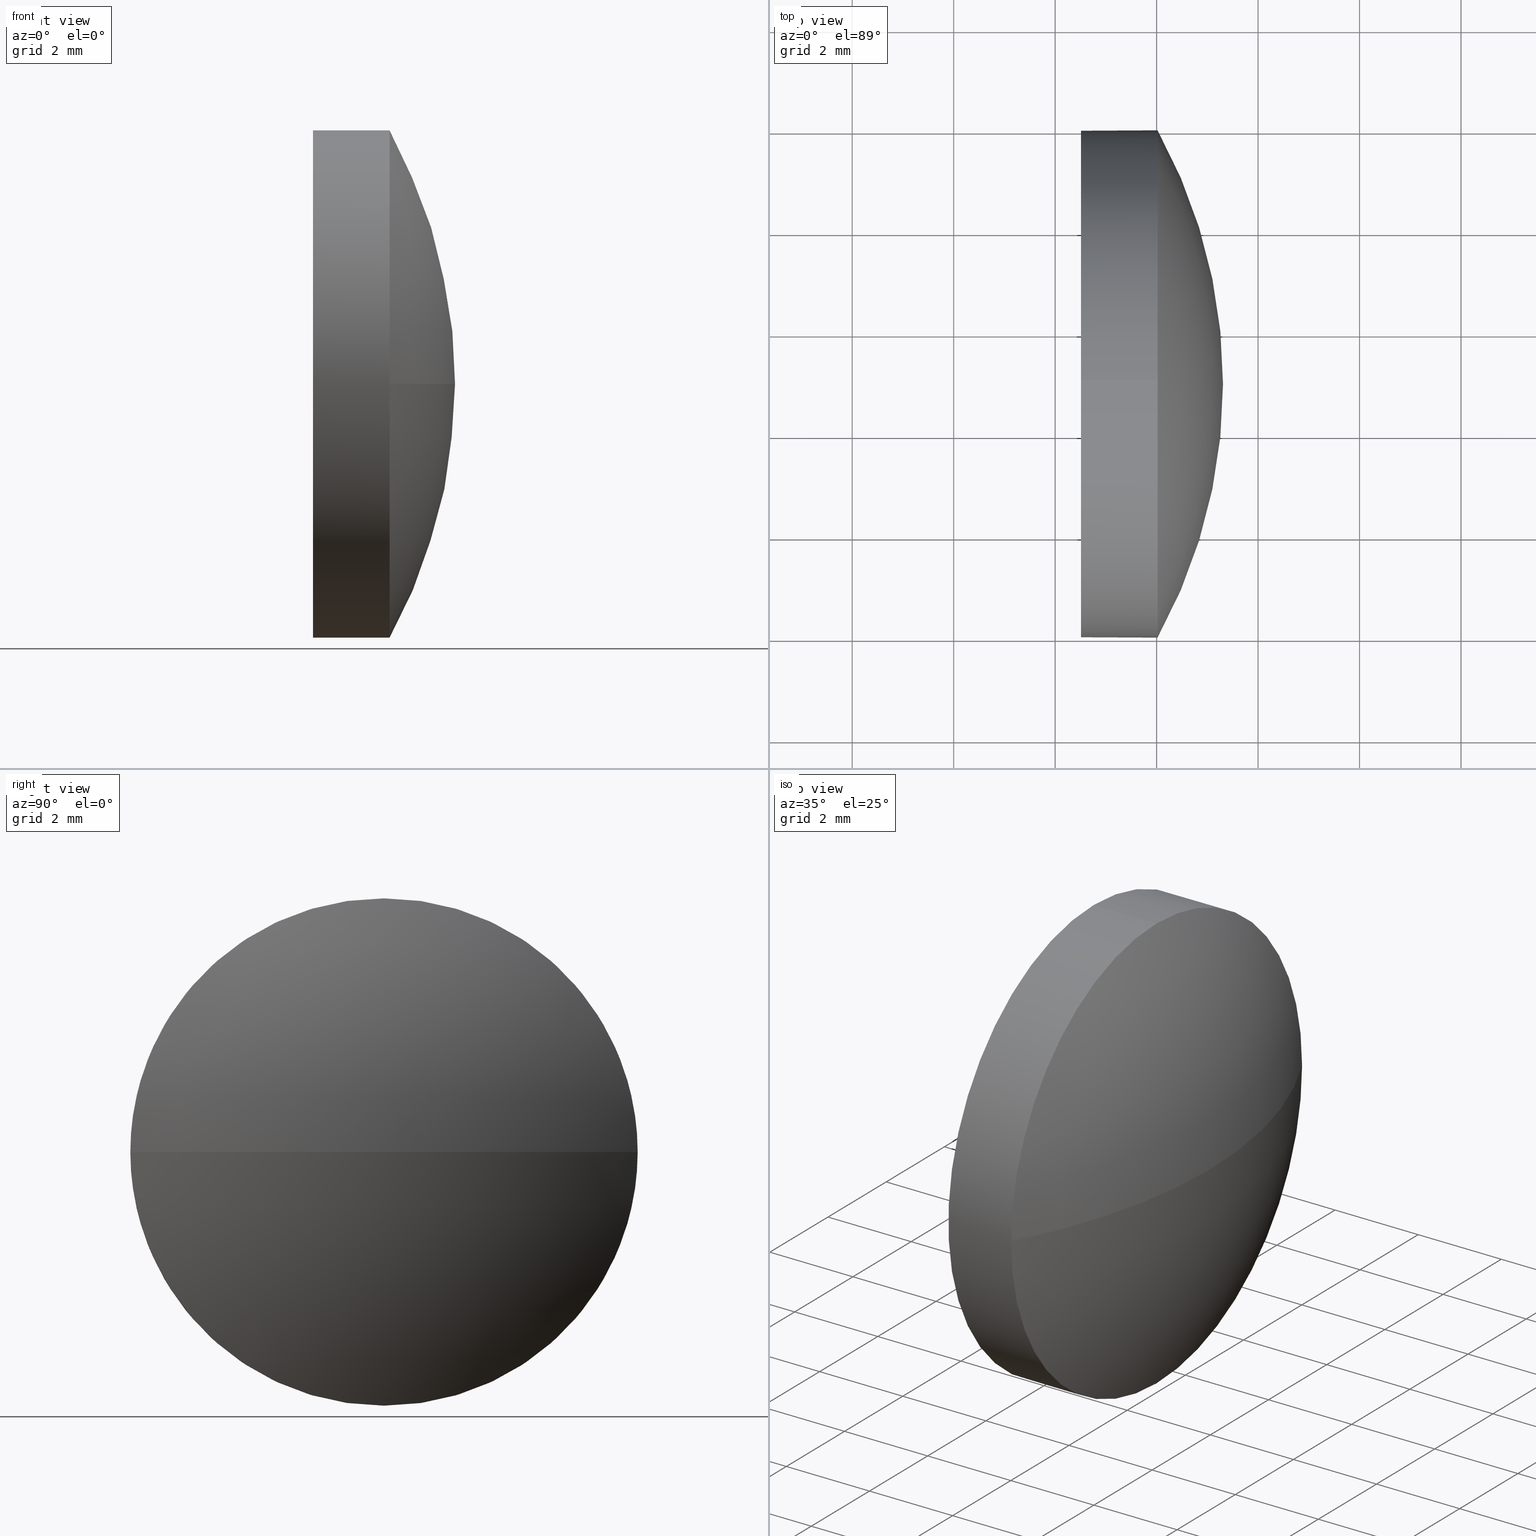
[diagram: canonical four-view strip — front | top / right | iso, engineering-drawing reading convention]
A machine part, canonical four-view strip (front | top / right | iso — engineering-drawing reading convention). The complete STEP part file that produces these views, byte-faithful:
ISO-10303-21;
HEADER;
FILE_DESCRIPTION (( 'STEP AP214' ),
    '1' );
FILE_NAME ('100016.STEP',
    '2019-04-19T07:48:52',
    ( '' ),
    ( '' ),
    'SwSTEP 2.0',
    'SolidWorks 2016',
    '' );
FILE_SCHEMA (( 'AUTOMOTIVE_DESIGN' ));
ENDSEC;

DATA;
#1 = SHAPE_DEFINITION_REPRESENTATION ( #39, #173 ) ;
#2 = COLOUR_RGB ( '',1.000000000000000000, 1.000000000000000000, 1.000000000000000000 ) ;
#3 = ORIENTED_EDGE ( 'NONE', *, *, #144, .T. ) ;
#4 = DIRECTION ( 'NONE',  ( -0.0000000000000000000, 0.0000000000000000000, 1.000000000000000000 ) ) ;
#5 = DIRECTION ( 'NONE',  ( 0.0000000000000000000, 0.0000000000000000000, 1.000000000000000000 ) ) ;
#6 = CARTESIAN_POINT ( 'NONE',  ( 579.2775846960382800, 182.9834042929953700, -5.000000000000004400 ) ) ;
#7 = AXIS2_PLACEMENT_3D ( 'NONE', #145, #168, #167 ) ;
#8 = DIRECTION ( 'NONE',  ( -1.000000000000000000, -0.0000000000000000000, -0.0000000000000000000 ) ) ;
#9 = ORIENTED_EDGE ( 'NONE', *, *, #137, .F. ) ;
#10 = AXIS2_PLACEMENT_3D ( 'NONE', #157, #102, #18 ) ;
#11 = ORIENTED_EDGE ( 'NONE', *, *, #172, .F. ) ;
#12 = DIRECTION ( 'NONE',  ( 0.0000000000000000000, 0.0000000000000000000, -1.000000000000000000 ) ) ;
#13 = CARTESIAN_POINT ( 'NONE',  ( 582.0191052701056800, 187.9834042929954000, 0.0000000000000000000 ) ) ;
#14 =( NAMED_UNIT ( * ) PLANE_ANGLE_UNIT ( ) SI_UNIT ( $, .RADIAN. ) );
#15 =( NAMED_UNIT ( * ) PLANE_ANGLE_UNIT ( ) SI_UNIT ( $, .RADIAN. ) );
#16 = EDGE_CURVE ( 'NONE', #52, #73, #164, .T. ) ;
#17 =( NAMED_UNIT ( * ) SI_UNIT ( $, .STERADIAN. ) SOLID_ANGLE_UNIT ( ) );
#18 = DIRECTION ( 'NONE',  ( 0.0000000000000000000, 0.0000000000000000000, 1.000000000000000000 ) ) ;
#19 = ADVANCED_FACE ( 'NONE', ( #125 ), #150, .T. ) ;
#20 = AXIS2_PLACEMENT_3D ( 'NONE', #176, #21, #67 ) ;
#21 = DIRECTION ( 'NONE',  ( -1.000000000000000000, -0.0000000000000000000, -0.0000000000000000000 ) ) ;
#22 = CARTESIAN_POINT ( 'NONE',  ( 582.0191052701056800, 182.9834042929953700, 5.000000000000004400 ) ) ;
#23 = DIRECTION ( 'NONE',  ( -1.000000000000000000, -0.0000000000000000000, -0.0000000000000000000 ) ) ;
#24 = CARTESIAN_POINT ( 'NONE',  ( 582.0191052701056800, 182.9834042929953700, 0.0000000000000000000 ) ) ;
#25 = UNCERTAINTY_MEASURE_WITH_UNIT (LENGTH_MEASURE( 1.000000000000000100E-005 ), #48, 'distance_accuracy_value', 'NONE');
#26 = ORIENTED_EDGE ( 'NONE', *, *, #16, .T. ) ;
#27 = AXIS2_PLACEMENT_3D ( 'NONE', #61, #76, #64 ) ;
#28 = CIRCLE ( 'NONE', #132, 5.000000000000004400 ) ;
#29 = STYLED_ITEM ( 'NONE', ( #43 ), #173 ) ;
#30 = CARTESIAN_POINT ( 'NONE',  ( 580.5091052701055800, 182.9834042929953700, 0.0000000000000000000 ) ) ;
#31 = VERTEX_POINT ( 'NONE', #186 ) ;
#32 = PRODUCT_CONTEXT ( 'NONE', #156, 'mechanical' ) ;
#33 =( NAMED_UNIT ( * ) PLANE_ANGLE_UNIT ( ) SI_UNIT ( $, .RADIAN. ) );
#34 = CYLINDRICAL_SURFACE ( 'NONE', #10, 5.000000000000004400 ) ;
#35 = ADVANCED_FACE ( 'NONE', ( #179 ), #34, .T. ) ;
#36 = EDGE_LOOP ( 'NONE', ( #142, #113, #11, #9, #55 ) ) ;
#37 = STYLED_ITEM ( 'NONE', ( #84 ), #122 ) ;
#38 = PLANE ( 'NONE',  #155 ) ;
#39 = PRODUCT_DEFINITION_SHAPE ( 'NONE', 'NONE',  #158 ) ;
#40 = SURFACE_STYLE_FILL_AREA ( #74 ) ;
#41 = DIRECTION ( 'NONE',  ( 0.0000000000000000000, 0.0000000000000000000, 1.000000000000000000 ) ) ;
#42 = AXIS2_PLACEMENT_3D ( 'NONE', #63, #160, #131 ) ;
#43 = PRESENTATION_STYLE_ASSIGNMENT (( #89 ) ) ;
#44 = CYLINDRICAL_SURFACE ( 'NONE', #20, 5.000000000000004400 ) ;
#45 = ORIENTED_EDGE ( 'NONE', *, *, #151, .F. ) ;
#46 =( LENGTH_UNIT ( ) NAMED_UNIT ( * ) SI_UNIT ( .MILLI., .METRE. ) );
#47 = UNCERTAINTY_MEASURE_WITH_UNIT (LENGTH_MEASURE( 1.000000000000000100E-005 ), #46, 'distance_accuracy_value', 'NONE');
#48 =( LENGTH_UNIT ( ) NAMED_UNIT ( * ) SI_UNIT ( .MILLI., .METRE. ) );
#49 = AXIS2_PLACEMENT_3D ( 'NONE', #54, #82, #41 ) ;
#50 = EDGE_LOOP ( 'NONE', ( #154, #3 ) ) ;
#51 = AXIS2_PLACEMENT_3D ( 'NONE', #91, #175, #161 ) ;
#52 = VERTEX_POINT ( 'NONE', #129 ) ;
#53 = CARTESIAN_POINT ( 'NONE',  ( 580.5091052701055800, 182.9834042929953700, 0.0000000000000000000 ) ) ;
#54 = CARTESIAN_POINT ( 'NONE',  ( 582.0191052701056800, 182.9834042929953700, 0.0000000000000000000 ) ) ;
#55 = ORIENTED_EDGE ( 'NONE', *, *, #151, .T. ) ;
#56 =( GEOMETRIC_REPRESENTATION_CONTEXT ( 3 ) GLOBAL_UNCERTAINTY_ASSIGNED_CONTEXT ( ( #143 ) ) GLOBAL_UNIT_ASSIGNED_CONTEXT ( ( #185, #33, #17 ) ) REPRESENTATION_CONTEXT ( 'NONE', 'WORKASPACE' ) );
#57 = ORIENTED_EDGE ( 'NONE', *, *, #144, .F. ) ;
#58 = EDGE_CURVE ( 'NONE', #31, #133, #183, .T. ) ;
#59 =( NAMED_UNIT ( * ) SI_UNIT ( $, .STERADIAN. ) SOLID_ANGLE_UNIT ( ) );
#60 = ORIENTED_EDGE ( 'NONE', *, *, #184, .F. ) ;
#61 = CARTESIAN_POINT ( 'NONE',  ( 572.9741827894854400, 182.9834042929954300, 0.0000000000000000000 ) ) ;
#62 = ADVANCED_FACE ( 'NONE', ( #110 ), #140, .T. ) ;
#63 = CARTESIAN_POINT ( 'NONE',  ( 572.9741827894854400, 182.9834042929954300, 0.0000000000000000000 ) ) ;
#64 = DIRECTION ( 'NONE',  ( 0.0000000000000000000, 1.000000000000000000, 0.0000000000000000000 ) ) ;
#65 = ORIENTED_EDGE ( 'NONE', *, *, #115, .F. ) ;
#66 = LINE ( 'NONE', #114, #106 ) ;
#67 = DIRECTION ( 'NONE',  ( 0.0000000000000000000, 0.0000000000000000000, 1.000000000000000000 ) ) ;
#68 = CARTESIAN_POINT ( 'NONE',  ( 572.9741827894854400, 182.9834042929954300, 0.0000000000000000000 ) ) ;
#69 = AXIS2_PLACEMENT_3D ( 'NONE', #30, #121, #134 ) ;
#70 = ORIENTED_EDGE ( 'NONE', *, *, #58, .F. ) ;
#71 = SURFACE_SIDE_STYLE ('',( #118 ) ) ;
#72 = FILL_AREA_STYLE_COLOUR ( '', #2 ) ;
#73 = VERTEX_POINT ( 'NONE', #22 ) ;
#74 = FILL_AREA_STYLE ('',( #128 ) ) ;
#75 = CIRCLE ( 'NONE', #49, 5.000000000000004400 ) ;
#76 = DIRECTION ( 'NONE',  ( -0.0000000000000000000, 0.0000000000000000000, -1.000000000000000000 ) ) ;
#77 = FACE_OUTER_BOUND ( 'NONE', #50, .T. ) ;
#78 = EDGE_CURVE ( 'NONE', #133, #99, #149, .T. ) ;
#79 = CARTESIAN_POINT ( 'NONE',  ( 572.9741827894854400, 182.9834042929954300, 0.0000000000000000000 ) ) ;
#80 = DIRECTION ( 'NONE',  ( -1.000000000000000000, -0.0000000000000000000, -0.0000000000000000000 ) ) ;
#81 = COLOUR_RGB ( '',1.000000000000000000, 1.000000000000000000, 1.000000000000000000 ) ;
#82 = DIRECTION ( 'NONE',  ( -1.000000000000000000, -0.0000000000000000000, -0.0000000000000000000 ) ) ;
#83 = APPLICATION_CONTEXT ( 'automotive_design' ) ;
#84 = PRESENTATION_STYLE_ASSIGNMENT (( #87 ) ) ;
#85 = ORIENTED_EDGE ( 'NONE', *, *, #16, .F. ) ;
#86 = ORIENTED_EDGE ( 'NONE', *, *, #58, .T. ) ;
#87 = SURFACE_STYLE_USAGE ( .BOTH. , #71 ) ;
#88 = MECHANICAL_DESIGN_GEOMETRIC_PRESENTATION_REPRESENTATION (  '', ( #37 ), #146 ) ;
#89 = SURFACE_STYLE_USAGE ( .BOTH. , #171 ) ;
#90 = EDGE_LOOP ( 'NONE', ( #65, #111, #26, #138, #57 ) ) ;
#91 = CARTESIAN_POINT ( 'NONE',  ( 582.0191052701056800, 182.9834042929953700, 0.0000000000000000000 ) ) ;
#92 = CARTESIAN_POINT ( 'NONE',  ( 582.0191052701056800, 182.9834042929953700, 0.0000000000000000000 ) ) ;
#93 = CARTESIAN_POINT ( 'NONE',  ( 580.5091052701055800, 182.9834042929953700, 0.0000000000000000000 ) ) ;
#94 = DIRECTION ( 'NONE',  ( 0.0000000000000000000, 1.000000000000000000, 1.224646799147353500E-016 ) ) ;
#95 = AXIS2_PLACEMENT_3D ( 'NONE', #68, #163, #94 ) ;
#96 = EDGE_LOOP ( 'NONE', ( #159, #86, #45, #85 ) ) ;
#97 = PRODUCT_DEFINITION_FORMATION_WITH_SPECIFIED_SOURCE ( '�κ�', '', #127, .NOT_KNOWN. ) ;
#98 = FILL_AREA_STYLE ('',( #72 ) ) ;
#99 = VERTEX_POINT ( 'NONE', #177 ) ;
#100 = DIRECTION ( 'NONE',  ( 0.0000000000000000000, 0.0000000000000000000, 1.000000000000000000 ) ) ;
#101 = CIRCLE ( 'NONE', #95, 10.33492248062026200 ) ;
#102 = DIRECTION ( 'NONE',  ( -1.000000000000000000, -0.0000000000000000000, -0.0000000000000000000 ) ) ;
#103 = LINE ( 'NONE', #6, #112 ) ;
#104 = ORIENTED_EDGE ( 'NONE', *, *, #170, .T. ) ;
#105 = PRESENTATION_LAYER_ASSIGNMENT (  '', '', ( #37 ) ) ;
#106 = VECTOR ( 'NONE', #126, 1000.000000000000000 ) ;
#107 = DIRECTION ( 'NONE',  ( -1.000000000000000000, -0.0000000000000000000, -0.0000000000000000000 ) ) ;
#108 = PRODUCT_RELATED_PRODUCT_CATEGORY ( 'part', '', ( #127 ) ) ;
#109 = CARTESIAN_POINT ( 'NONE',  ( 580.5091052701055800, 182.9834042929953700, 5.000000000000004400 ) ) ;
#110 = FACE_OUTER_BOUND ( 'NONE', #180, .T. ) ;
#111 = ORIENTED_EDGE ( 'NONE', *, *, #184, .T. ) ;
#112 = VECTOR ( 'NONE', #107, 1000.000000000000000 ) ;
#113 = ORIENTED_EDGE ( 'NONE', *, *, #115, .T. ) ;
#114 = CARTESIAN_POINT ( 'NONE',  ( 579.2775846960382800, 182.9834042929953700, 5.000000000000004400 ) ) ;
#115 = EDGE_CURVE ( 'NONE', #99, #119, #103, .T. ) ;
#116 = APPLICATION_PROTOCOL_DEFINITION ( 'draft international standard', 'automotive_design', 1998, #156 ) ;
#117 = ADVANCED_FACE ( 'NONE', ( #153 ), #44, .T. ) ;
#118 = SURFACE_STYLE_FILL_AREA ( #98 ) ;
#119 = VERTEX_POINT ( 'NONE', #162 ) ;
#120 = ADVANCED_FACE ( 'NONE', ( #77 ), #38, .F. ) ;
#121 = DIRECTION ( 'NONE',  ( -1.000000000000000000, -0.0000000000000000000, -0.0000000000000000000 ) ) ;
#122 = MANIFOLD_SOLID_BREP ( '��ת1', #174 ) ;
#123 = AXIS2_PLACEMENT_3D ( 'NONE', #93, #23, #136 ) ;
#124 = DIRECTION ( 'NONE',  ( 1.000000000000000000, 0.0000000000000000000, 0.0000000000000000000 ) ) ;
#125 = FACE_OUTER_BOUND ( 'NONE', #96, .T. ) ;
#126 = DIRECTION ( 'NONE',  ( -1.000000000000000000, -0.0000000000000000000, -0.0000000000000000000 ) ) ;
#127 = PRODUCT ( '100016', '100016', '', ( #32 ) ) ;
#128 = FILL_AREA_STYLE_COLOUR ( '', #81 ) ;
#129 = CARTESIAN_POINT ( 'NONE',  ( 582.0191052701056800, 177.9834042929954000, -6.123233995736802800E-016 ) ) ;
#130 = ORIENTED_EDGE ( 'NONE', *, *, #78, .F. ) ;
#131 = DIRECTION ( 'NONE',  ( 0.0000000000000000000, 1.000000000000000000, 0.0000000000000000000 ) ) ;
#132 = AXIS2_PLACEMENT_3D ( 'NONE', #24, #8, #100 ) ;
#133 = VERTEX_POINT ( 'NONE', #13 ) ;
#134 = DIRECTION ( 'NONE',  ( 0.0000000000000000000, 0.0000000000000000000, 1.000000000000000000 ) ) ;
#135 = PRESENTATION_LAYER_ASSIGNMENT (  '', '', ( #29 ) ) ;
#136 = DIRECTION ( 'NONE',  ( 0.0000000000000000000, 0.0000000000000000000, 1.000000000000000000 ) ) ;
#137 = EDGE_CURVE ( 'NONE', #73, #169, #66, .T. ) ;
#138 = ORIENTED_EDGE ( 'NONE', *, *, #137, .T. ) ;
#139 = CIRCLE ( 'NONE', #123, 5.000000000000004400 ) ;
#140 = SPHERICAL_SURFACE ( 'NONE', #27, 10.33492248062026400 ) ;
#141 =( NAMED_UNIT ( * ) SI_UNIT ( $, .STERADIAN. ) SOLID_ANGLE_UNIT ( ) );
#142 = ORIENTED_EDGE ( 'NONE', *, *, #78, .T. ) ;
#143 = UNCERTAINTY_MEASURE_WITH_UNIT (LENGTH_MEASURE( 1.000000000000000100E-005 ), #185, 'distance_accuracy_value', 'NONE');
#144 = EDGE_CURVE ( 'NONE', #119, #169, #147, .T. ) ;
#145 = CARTESIAN_POINT ( 'NONE',  ( 0.0000000000000000000, 0.0000000000000000000, 0.0000000000000000000 ) ) ;
#146 =( GEOMETRIC_REPRESENTATION_CONTEXT ( 3 ) GLOBAL_UNCERTAINTY_ASSIGNED_CONTEXT ( ( #47 ) ) GLOBAL_UNIT_ASSIGNED_CONTEXT ( ( #46, #14, #141 ) ) REPRESENTATION_CONTEXT ( 'NONE', 'WORKASPACE' ) );
#147 = CIRCLE ( 'NONE', #69, 5.000000000000004400 ) ;
#148 =( GEOMETRIC_REPRESENTATION_CONTEXT ( 3 ) GLOBAL_UNCERTAINTY_ASSIGNED_CONTEXT ( ( #25 ) ) GLOBAL_UNIT_ASSIGNED_CONTEXT ( ( #48, #15, #59 ) ) REPRESENTATION_CONTEXT ( 'NONE', 'WORKASPACE' ) );
#149 = CIRCLE ( 'NONE', #181, 5.000000000000004400 ) ;
#150 = SPHERICAL_SURFACE ( 'NONE', #42, 10.33492248062026400 ) ;
#151 = EDGE_CURVE ( 'NONE', #73, #133, #75, .T. ) ;
#152 = PRODUCT_DEFINITION_CONTEXT ( 'detailed design', #83, 'design' ) ;
#153 = FACE_OUTER_BOUND ( 'NONE', #90, .T. ) ;
#154 = ORIENTED_EDGE ( 'NONE', *, *, #172, .T. ) ;
#155 = AXIS2_PLACEMENT_3D ( 'NONE', #53, #182, #12 ) ;
#156 = APPLICATION_CONTEXT ( 'automotive_design' ) ;
#157 = CARTESIAN_POINT ( 'NONE',  ( 579.2775846960382800, 182.9834042929953700, 0.0000000000000000000 ) ) ;
#158 = PRODUCT_DEFINITION ( 'δ֪', '', #97, #152 ) ;
#159 = ORIENTED_EDGE ( 'NONE', *, *, #170, .F. ) ;
#160 = DIRECTION ( 'NONE',  ( -0.0000000000000000000, 0.0000000000000000000, -1.000000000000000000 ) ) ;
#161 = DIRECTION ( 'NONE',  ( 0.0000000000000000000, 0.0000000000000000000, 1.000000000000000000 ) ) ;
#162 = CARTESIAN_POINT ( 'NONE',  ( 580.5091052701055800, 182.9834042929953700, -5.000000000000004400 ) ) ;
#163 = DIRECTION ( 'NONE',  ( 0.0000000000000000000, 1.224646799147353200E-016, -1.000000000000000000 ) ) ;
#164 = CIRCLE ( 'NONE', #51, 5.000000000000004400 ) ;
#165 = AXIS2_PLACEMENT_3D ( 'NONE', #79, #4, #124 ) ;
#166 = MECHANICAL_DESIGN_GEOMETRIC_PRESENTATION_REPRESENTATION (  '', ( #29 ), #56 ) ;
#167 = DIRECTION ( 'NONE',  ( 1.000000000000000000, 0.0000000000000000000, 0.0000000000000000000 ) ) ;
#168 = DIRECTION ( 'NONE',  ( 0.0000000000000000000, 0.0000000000000000000, 1.000000000000000000 ) ) ;
#169 = VERTEX_POINT ( 'NONE', #109 ) ;
#170 = EDGE_CURVE ( 'NONE', #31, #52, #101, .T. ) ;
#171 = SURFACE_SIDE_STYLE ('',( #40 ) ) ;
#172 = EDGE_CURVE ( 'NONE', #169, #119, #139, .T. ) ;
#173 = ADVANCED_BREP_SHAPE_REPRESENTATION ( '100016', ( #122, #7 ), #148 ) ;
#174 = CLOSED_SHELL ( 'NONE', ( #35, #62, #19, #117, #120 ) ) ;
#175 = DIRECTION ( 'NONE',  ( -1.000000000000000000, -0.0000000000000000000, -0.0000000000000000000 ) ) ;
#176 = CARTESIAN_POINT ( 'NONE',  ( 579.2775846960382800, 182.9834042929953700, 0.0000000000000000000 ) ) ;
#177 = CARTESIAN_POINT ( 'NONE',  ( 582.0191052701056800, 182.9834042929953700, -5.000000000000004400 ) ) ;
#178 = APPLICATION_PROTOCOL_DEFINITION ( 'draft international standard', 'automotive_design', 1998, #83 ) ;
#179 = FACE_OUTER_BOUND ( 'NONE', #36, .T. ) ;
#180 = EDGE_LOOP ( 'NONE', ( #70, #104, #60, #130 ) ) ;
#181 = AXIS2_PLACEMENT_3D ( 'NONE', #92, #80, #5 ) ;
#182 = DIRECTION ( 'NONE',  ( 1.000000000000000000, 0.0000000000000000000, 0.0000000000000000000 ) ) ;
#183 = CIRCLE ( 'NONE', #165, 10.33492248062028900 ) ;
#184 = EDGE_CURVE ( 'NONE', #99, #52, #28, .T. ) ;
#185 =( LENGTH_UNIT ( ) NAMED_UNIT ( * ) SI_UNIT ( .MILLI., .METRE. ) );
#186 = CARTESIAN_POINT ( 'NONE',  ( 583.3091052701057600, 182.9834042929954300, 0.0000000000000000000 ) ) ;
ENDSEC;
END-ISO-10303-21;
